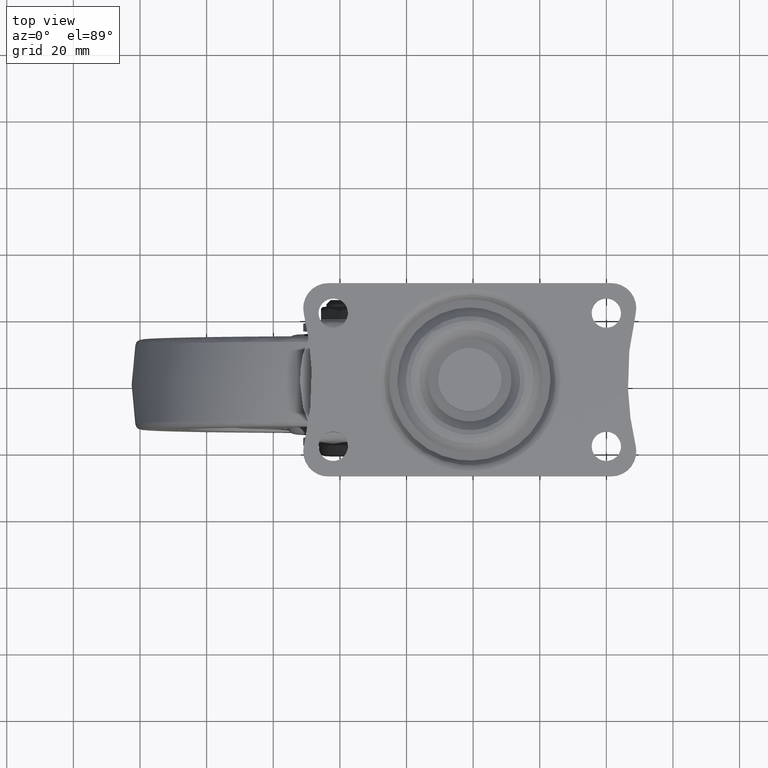
[diagram: clean part render]
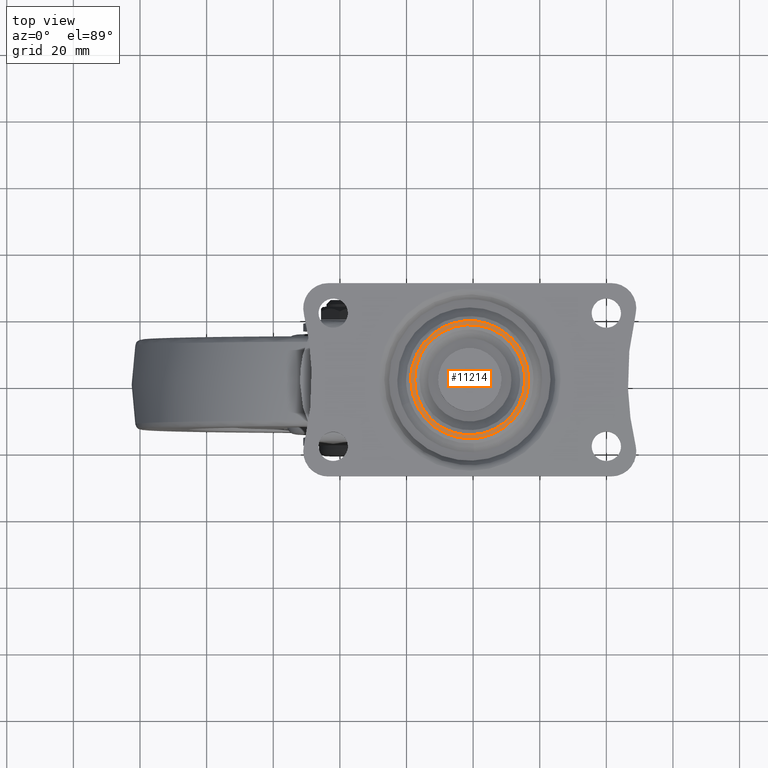
[diagram: same view with one face highlighted and labeled with its STEP entity id]
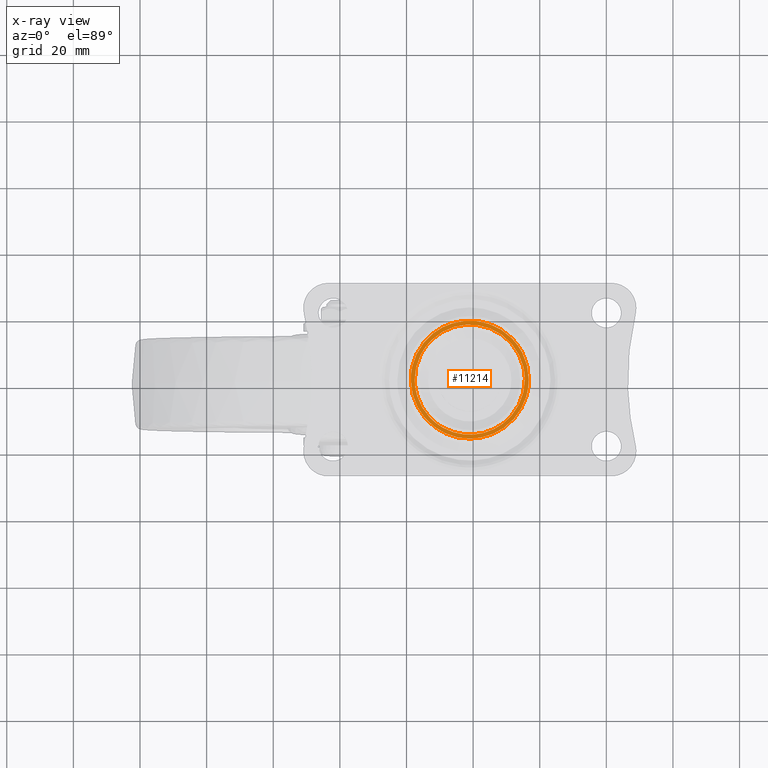
[diagram: x-ray of the same camera — body ghosted, the highlighted face saturated]
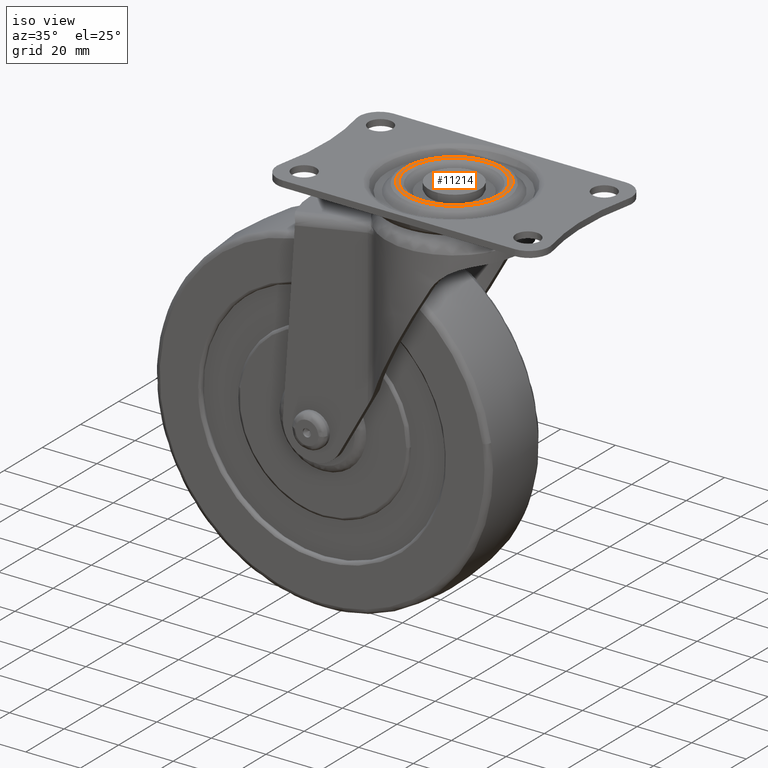
[diagram: same view with one face highlighted and labeled with its STEP entity id]
A machine part, top view. The second image highlights one B-rep face of the part: STEP entity #11214.
The next image is the same camera in x-ray: the body ghosted, the highlighted face saturated — about 0% of this face is hidden behind the body in this view.
A second angle (iso view) of the same face is appended — the face is thin or edge-on in the first view.
In plain terms, the highlighted face is a freeform B-spline surface patch.
Its self-contained STEP definition (entity closure, byte-faithful):
#8997=CARTESIAN_POINT('',(27.094045217863400,-11.465363626180350,85.500000000000000));
#8998=VERTEX_POINT('',#8997);
#9012=CARTESIAN_POINT('',(55.528954073182000,0.0,85.500000000000000));
#9013=VERTEX_POINT('',#9012);
#9014=CARTESIAN_POINT('',(55.528954073182000,0.0,85.500000000000000));
#9015=CARTESIAN_POINT('',(55.528954073181993,-16.528954073182003,85.500000000000000));
#9016=CARTESIAN_POINT('',(39.0,-16.528954073182000,85.500000000000000));
#9017=CARTESIAN_POINT('',(31.970252678122879,-16.528954073182003,85.500000000000000));
#9018=CARTESIAN_POINT('',(27.094045217863410,-11.465363626180345,85.500000000000000));
#9026=(BOUNDED_CURVE()B_SPLINE_CURVE(2,(#9014,#9015,#9016,#9017,#9018),.UNSPECIFIED.,.F.,.U.)B_SPLINE_CURVE_WITH_KNOTS((3,2,3),(0.0,0.250000000000000,0.377844262561321),.UNSPECIFIED.)CURVE()GEOMETRIC_REPRESENTATION_ITEM()RATIONAL_B_SPLINE_CURVE((1.0,0.707106781186548,1.0,0.850221129726330,0.853629213191901))REPRESENTATION_ITEM(''));
#9027=EDGE_CURVE('',#9013,#8998,#9026,.T.);
#9029=CARTESIAN_POINT('',(27.534636365542251,11.905954790836169,85.500000000000000));
#9030=VERTEX_POINT('',#9029);
#9031=CARTESIAN_POINT('',(27.534636365542248,11.905954790836168,85.500000000000000));
#9032=CARTESIAN_POINT('',(32.335288329817232,16.528954073182000,85.500000000000000));
#9033=CARTESIAN_POINT('',(39.0,16.528954073182000,85.500000000000000));
#9034=CARTESIAN_POINT('',(55.528954073181993,16.528954073182003,85.500000000000000));
#9035=CARTESIAN_POINT('',(55.528954073182000,0.0,85.500000000000000));
#9043=(BOUNDED_CURVE()B_SPLINE_CURVE(2,(#9031,#9032,#9033,#9034,#9035),.UNSPECIFIED.,.F.,.U.)B_SPLINE_CURVE_WITH_KNOTS((3,2,3),(0.627844262562639,0.750000000000000,1.0),.UNSPECIFIED.)CURVE()GEOMETRIC_REPRESENTATION_ITEM()RATIONAL_B_SPLINE_CURVE((0.853629213191971,0.856885651461762,1.0,0.707106781186548,1.0))REPRESENTATION_ITEM(''));
#9044=EDGE_CURVE('',#9030,#9013,#9043,.T.);
#9083=CARTESIAN_POINT('',(22.471045926818000,0.0,85.500000000000000));
#9084=VERTEX_POINT('',#9083);
#9085=CARTESIAN_POINT('',(22.471045926818000,0.0,85.500000000000000));
#9086=CARTESIAN_POINT('',(22.471045926817997,7.029747321962407,85.499999999999986));
#9087=CARTESIAN_POINT('',(27.534636365542248,11.905954790836168,85.500000000000000));
#9095=(BOUNDED_CURVE()B_SPLINE_CURVE(2,(#9085,#9086,#9087),.UNSPECIFIED.,.F.,.U.)B_SPLINE_CURVE_WITH_KNOTS((3,3),(0.500000000000000,0.627844262562640),.UNSPECIFIED.)CURVE()GEOMETRIC_REPRESENTATION_ITEM()RATIONAL_B_SPLINE_CURVE((1.0,0.850221129724785,0.853629213191971))REPRESENTATION_ITEM(''));
#9096=EDGE_CURVE('',#9084,#9030,#9095,.T.);
#9098=CARTESIAN_POINT('',(27.094045217863410,-11.465363626180345,85.500000000000000));
#9099=CARTESIAN_POINT('',(22.471045926817997,-6.664711670266702,85.500000000000014));
#9100=CARTESIAN_POINT('',(22.471045926818000,0.0,85.500000000000000));
#9108=(BOUNDED_CURVE()B_SPLINE_CURVE(2,(#9098,#9099,#9100),.UNSPECIFIED.,.F.,.U.)B_SPLINE_CURVE_WITH_KNOTS((3,3),(0.377844262561321,0.500000000000000),.UNSPECIFIED.)CURVE()GEOMETRIC_REPRESENTATION_ITEM()RATIONAL_B_SPLINE_CURVE((0.853629213191901,0.856885651460217,1.0))REPRESENTATION_ITEM(''));
#9109=EDGE_CURVE('',#8998,#9084,#9108,.T.);
#9150=CARTESIAN_POINT('',(28.087495547287791,13.962546901071960,85.500000000000000));
#9151=VERTEX_POINT('',#9150);
#9152=CARTESIAN_POINT('',(21.278954073182000,0.0,85.500000000000000));
#9153=VERTEX_POINT('',#9152);
#9154=CARTESIAN_POINT('',(28.087495547287791,13.962546901071962,85.500000000000000));
#9155=CARTESIAN_POINT('',(21.278954073182000,8.641294266441419,85.499999999999986));
#9156=CARTESIAN_POINT('',(21.278954073182000,0.0,85.500000000000000));
#9164=(BOUNDED_CURVE()B_SPLINE_CURVE(2,(#9154,#9155,#9156),.UNSPECIFIED.,.F.,.U.)B_SPLINE_CURVE_WITH_KNOTS((3,3),(0.356567917891899,0.500000000000000),.UNSPECIFIED.)CURVE()GEOMETRIC_REPRESENTATION_ITEM()RATIONAL_B_SPLINE_CURVE((0.856737647415016,0.831958863160972,1.0))REPRESENTATION_ITEM(''));
#9165=EDGE_CURVE('',#9151,#9153,#9164,.T.);
#9185=CARTESIAN_POINT('',(51.609156416499403,12.451692387356671,85.500000000000000));
#9186=VERTEX_POINT('',#9185);
#9200=CARTESIAN_POINT('',(56.721045926818000,0.0,85.500000000000000));
#9201=VERTEX_POINT('',#9200);
#9202=CARTESIAN_POINT('',(56.721045926818000,0.0,85.500000000000000));
#9203=CARTESIAN_POINT('',(56.721045926817993,7.275157947966402,85.500000000000000));
#9204=CARTESIAN_POINT('',(51.609156416499403,12.451692387356667,85.500000000000000));
#9212=(BOUNDED_CURVE()B_SPLINE_CURVE(2,(#9202,#9203,#9204),.UNSPECIFIED.,.F.,.U.)B_SPLINE_CURVE_WITH_KNOTS((3,3),(0.0,0.124051937431982),.UNSPECIFIED.)CURVE()GEOMETRIC_REPRESENTATION_ITEM()RATIONAL_B_SPLINE_CURVE((1.0,0.854664114982007,0.853561814883005))REPRESENTATION_ITEM(''));
#9213=EDGE_CURVE('',#9201,#9186,#9212,.T.);
#9215=CARTESIAN_POINT('',(21.278954073182000,0.0,85.500000000000000));
#9216=CARTESIAN_POINT('',(21.278954073182000,-17.721045926818007,85.500000000000000));
#9217=CARTESIAN_POINT('',(39.0,-17.721045926818000,85.500000000000000));
#9218=CARTESIAN_POINT('',(56.721045926817993,-17.721045926818007,85.500000000000000));
#9219=CARTESIAN_POINT('',(56.721045926818000,0.0,85.500000000000000));
#9227=(BOUNDED_CURVE()B_SPLINE_CURVE(2,(#9215,#9216,#9217,#9218,#9219),.UNSPECIFIED.,.F.,.U.)B_SPLINE_CURVE_WITH_KNOTS((3,2,3),(0.500000000000000,0.750000000000000,1.0),.UNSPECIFIED.)CURVE()GEOMETRIC_REPRESENTATION_ITEM()RATIONAL_B_SPLINE_CURVE((1.0,0.707106781186548,1.0,0.707106781186548,1.0))REPRESENTATION_ITEM(''));
#9228=EDGE_CURVE('',#9153,#9201,#9227,.T.);
#9250=CARTESIAN_POINT('',(51.609156416499403,12.451692387356667,85.500000000000000));
#9251=CARTESIAN_POINT('',(46.405606929233038,17.721045926817997,85.500000000000014));
#9252=CARTESIAN_POINT('',(39.0,17.721045926818000,85.500000000000000));
#9253=CARTESIAN_POINT('',(32.896494203546595,17.721045926818004,85.500000000000000));
#9254=CARTESIAN_POINT('',(28.087495547287791,13.962546901071962,85.500000000000000));
#9262=(BOUNDED_CURVE()B_SPLINE_CURVE(2,(#9250,#9251,#9252,#9253,#9254),.UNSPECIFIED.,.F.,.U.)B_SPLINE_CURVE_WITH_KNOTS((3,2,3),(0.124051937431982,0.250000000000000,0.356567917891899),.UNSPECIFIED.)CURVE()GEOMETRIC_REPRESENTATION_ITEM()RATIONAL_B_SPLINE_CURVE((0.853561814883005,0.852442666204540,1.0,0.875147918025576,0.856737647415016))REPRESENTATION_ITEM(''));
#9263=EDGE_CURVE('',#9186,#9151,#9262,.T.);
#11197=CARTESIAN_POINT('',(19.508620988376531,-19.491270770762139,85.500000000000000));
#11198=CARTESIAN_POINT('',(58.491379328500457,-19.491270770762139,85.500000000000000));
#11199=CARTESIAN_POINT('',(19.508620988376531,19.489104103647090,85.500000000000000));
#11200=CARTESIAN_POINT('',(58.491379328500457,19.489104103647090,85.500000000000000));
#11201=B_SPLINE_SURFACE_WITH_KNOTS('',1,1,((#11197,#11199),(#11198,#11200)),.UNSPECIFIED.,.F.,.F.,.U.,(2,2),(2,2),(0.0,38.982758340123922),(0.0,38.980374874409229),.UNSPECIFIED.);
#11202=ORIENTED_EDGE('',*,*,#9165,.T.);
#11203=ORIENTED_EDGE('',*,*,#9228,.T.);
#11204=ORIENTED_EDGE('',*,*,#9213,.T.);
#11205=ORIENTED_EDGE('',*,*,#9263,.T.);
#11206=EDGE_LOOP('',(#11202,#11203,#11204,#11205));
#11207=FACE_OUTER_BOUND('',#11206,.T.);
#11208=ORIENTED_EDGE('',*,*,#9096,.T.);
#11209=ORIENTED_EDGE('',*,*,#9044,.T.);
#11210=ORIENTED_EDGE('',*,*,#9027,.T.);
#11211=ORIENTED_EDGE('',*,*,#9109,.T.);
#11212=EDGE_LOOP('',(#11208,#11209,#11210,#11211));
#11213=FACE_BOUND('',#11212,.T.);
#11214=ADVANCED_FACE('',(#11207,#11213),#11201,.T.);